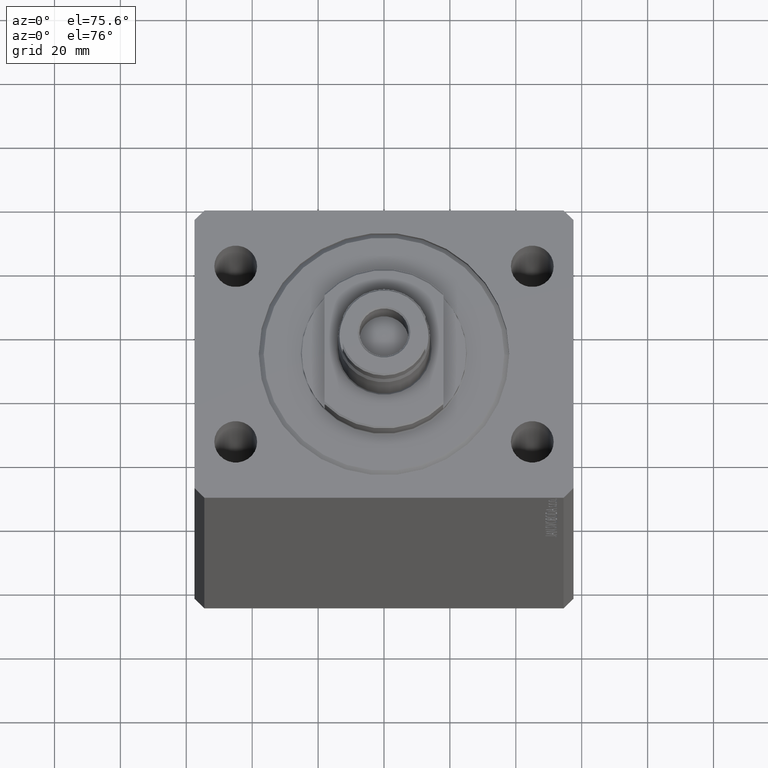
[diagram: clean part render]
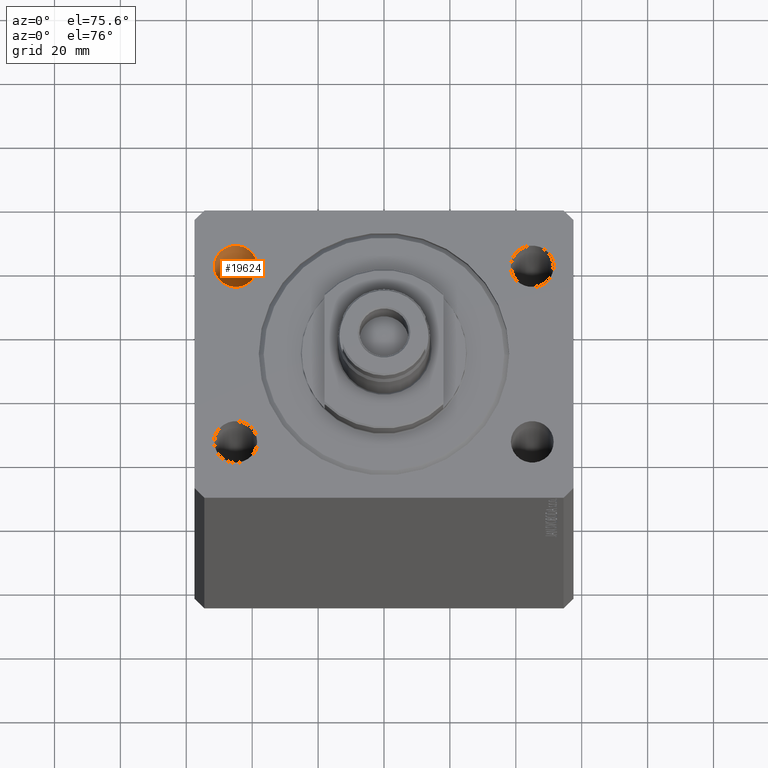
[diagram: same view with one face highlighted and labeled with its STEP entity id]
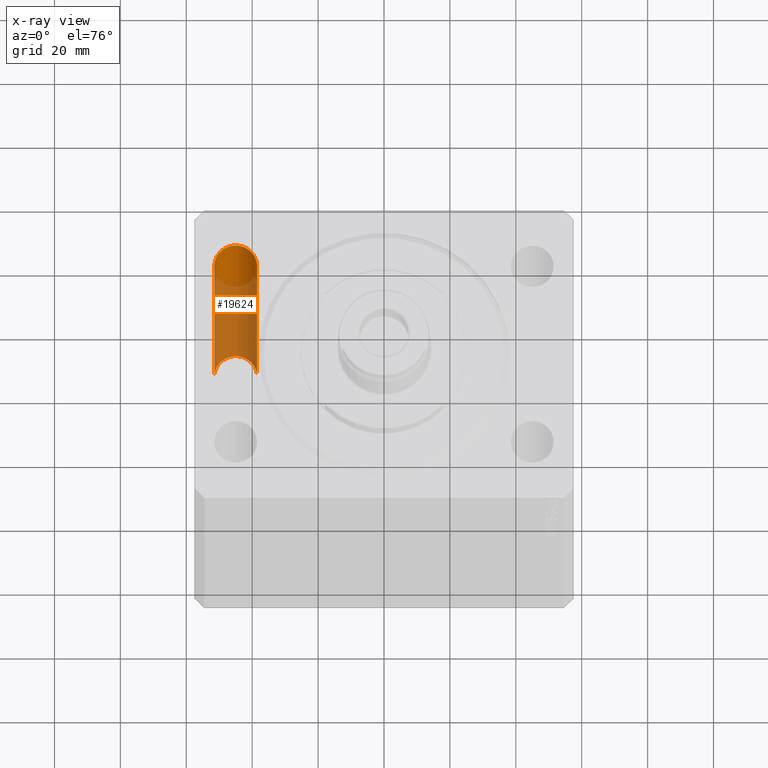
[diagram: x-ray of the same camera — body ghosted, the highlighted face saturated]
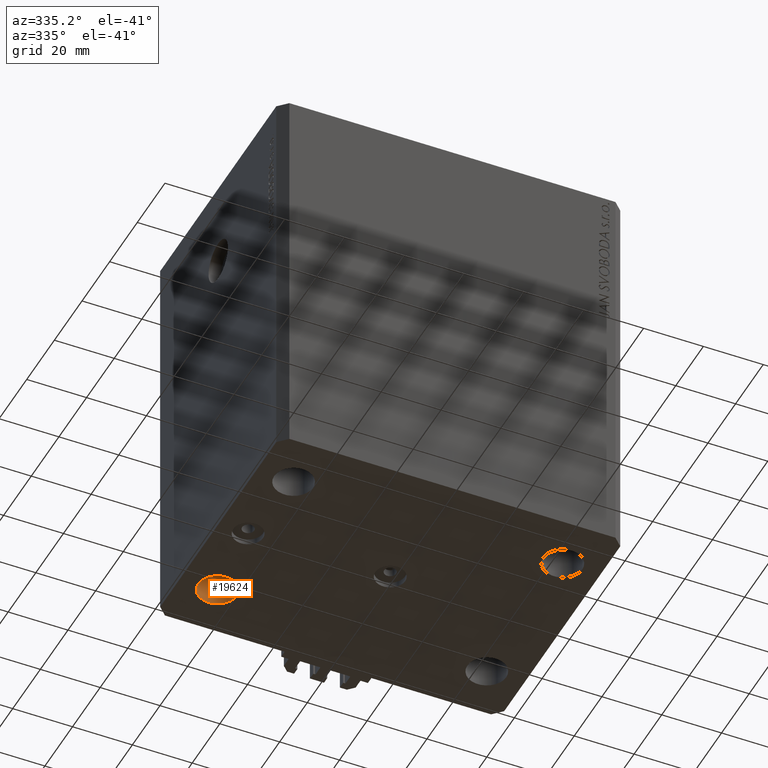
[diagram: same view with one face highlighted and labeled with its STEP entity id]
A machine part, auxiliary view. The second image highlights one B-rep face of the part: STEP entity #19624.
The next image is the same camera in x-ray: the body ghosted, the highlighted face saturated — about 70% of this face is hidden behind the body in this view.
A second angle (auxiliary view) of the same face is appended — the face is thin or edge-on in the first view.
In plain terms, the highlighted cylindrical surface (edge-blend (fillet) strip) has radius 6.5 mm, axis along (0, 0, 1).
Its self-contained STEP definition (entity closure, byte-faithful):
#388 = CIRCLE ( 'NONE', #9444, 6.499999999999999112 ) ;
#1250 = EDGE_CURVE ( 'NONE', #18617, #30604, #388, .T. ) ;
#3105 = DIRECTION ( 'NONE',  ( 1.000000000000000000, 0.000000000000000000, 0.000000000000000000 ) ) ;
#3590 = CARTESIAN_POINT ( 'NONE',  ( -51.50000000000000000, 27.49999999999999645, 0.000000000000000000 ) ) ;
#4381 = DIRECTION ( 'NONE',  ( -0.000000000000000000, -0.000000000000000000, -1.000000000000000000 ) ) ;
#4998 = VECTOR ( 'NONE', #41007, 1000.000000000000000 ) ;
#5737 = CARTESIAN_POINT ( 'NONE',  ( -45.00000000000000000, 27.49999999999999645, -153.3847763108502420 ) ) ;
#6932 = EDGE_CURVE ( 'NONE', #18617, #42791, #8974, .T. ) ;
#7337 = AXIS2_PLACEMENT_3D ( 'NONE', #37076, #26875, #34212 ) ;
#8821 = CYLINDRICAL_SURFACE ( 'NONE', #21311, 6.499999999999999112 ) ;
#8974 = LINE ( 'NONE', #38128, #4998 ) ;
#9444 = AXIS2_PLACEMENT_3D ( 'NONE', #33769, #4381, #40427 ) ;
#9902 = EDGE_CURVE ( 'NONE', #38647, #42791, #27764, .T. ) ;
#10123 = ORIENTED_EDGE ( 'NONE', *, *, #32557, .T. ) ;
#12150 = CARTESIAN_POINT ( 'NONE',  ( -51.50000000000000000, 27.49999999999999645, -135.0000000000000000 ) ) ;
#17835 = CARTESIAN_POINT ( 'NONE',  ( -38.50000000000000000, 27.49999999999999645, 0.000000000000000000 ) ) ;
#18405 = CARTESIAN_POINT ( 'NONE',  ( -38.50000000000000000, 27.49999999999999645, -153.3847763108502420 ) ) ;
#18617 = VERTEX_POINT ( 'NONE', #12150 ) ;
#19624 = ADVANCED_FACE ( 'NONE', ( #41315 ), #8821, .F. ) ;
#20212 = DIRECTION ( 'NONE',  ( -0.000000000000000000, -0.000000000000000000, 1.000000000000000000 ) ) ;
#21311 = AXIS2_PLACEMENT_3D ( 'NONE', #5737, #20212, #3105 ) ;
#21581 = VECTOR ( 'NONE', #28363, 1000.000000000000000 ) ;
#23962 = ORIENTED_EDGE ( 'NONE', *, *, #1250, .T. ) ;
#26248 = EDGE_LOOP ( 'NONE', ( #44436, #23962, #10123, #45929 ) ) ;
#26875 = DIRECTION ( 'NONE',  ( 0.000000000000000000, 0.000000000000000000, 1.000000000000000000 ) ) ;
#27764 = CIRCLE ( 'NONE', #7337, 6.499999999999999112 ) ;
#28363 = DIRECTION ( 'NONE',  ( -0.000000000000000000, -0.000000000000000000, 1.000000000000000000 ) ) ;
#30604 = VERTEX_POINT ( 'NONE', #41589 ) ;
#32557 = EDGE_CURVE ( 'NONE', #30604, #38647, #42819, .T. ) ;
#33769 = CARTESIAN_POINT ( 'NONE',  ( -45.00000000000000000, 27.49999999999999645, -135.0000000000000000 ) ) ;
#34212 = DIRECTION ( 'NONE',  ( 1.000000000000000000, 0.000000000000000000, 0.000000000000000000 ) ) ;
#37076 = CARTESIAN_POINT ( 'NONE',  ( -45.00000000000000000, 27.49999999999999645, 0.000000000000000000 ) ) ;
#38128 = CARTESIAN_POINT ( 'NONE',  ( -51.50000000000000000, 27.49999999999999645, -153.3847763108502420 ) ) ;
#38647 = VERTEX_POINT ( 'NONE', #17835 ) ;
#40427 = DIRECTION ( 'NONE',  ( 1.000000000000000000, 0.000000000000000000, 0.000000000000000000 ) ) ;
#41007 = DIRECTION ( 'NONE',  ( -0.000000000000000000, -0.000000000000000000, 1.000000000000000000 ) ) ;
#41315 = FACE_OUTER_BOUND ( 'NONE', #26248, .T. ) ;
#41589 = CARTESIAN_POINT ( 'NONE',  ( -38.50000000000000000, 27.49999999999999645, -135.0000000000000000 ) ) ;
#42791 = VERTEX_POINT ( 'NONE', #3590 ) ;
#42819 = LINE ( 'NONE', #18405, #21581 ) ;
#44436 = ORIENTED_EDGE ( 'NONE', *, *, #6932, .F. ) ;
#45929 = ORIENTED_EDGE ( 'NONE', *, *, #9902, .T. ) ;